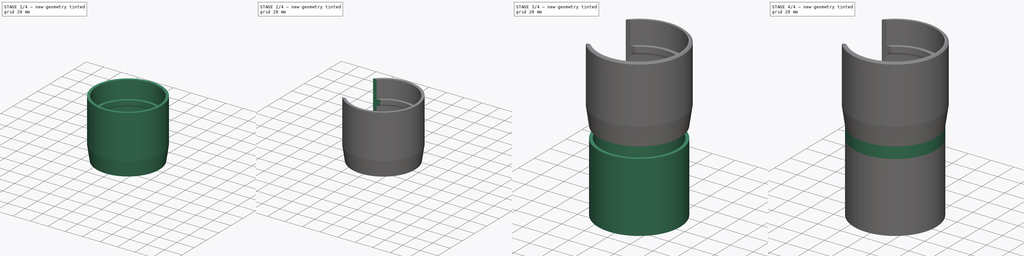
[diagram: build sequence overview — one tinted view per stage of 4, left to right]
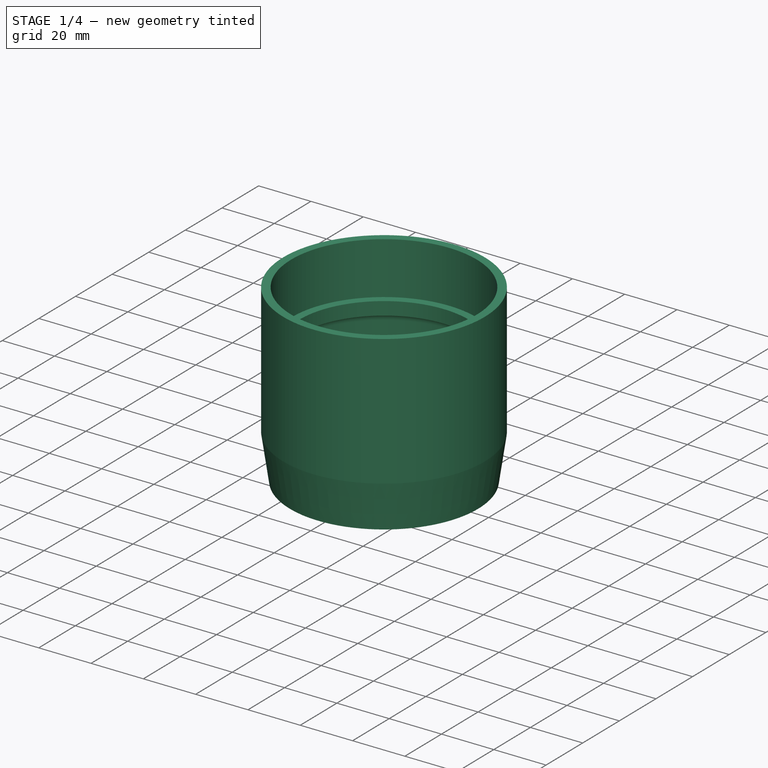
[diagram: stage 1 of 4 — iso view after this stage's code; geometry added in this stage tinted green]
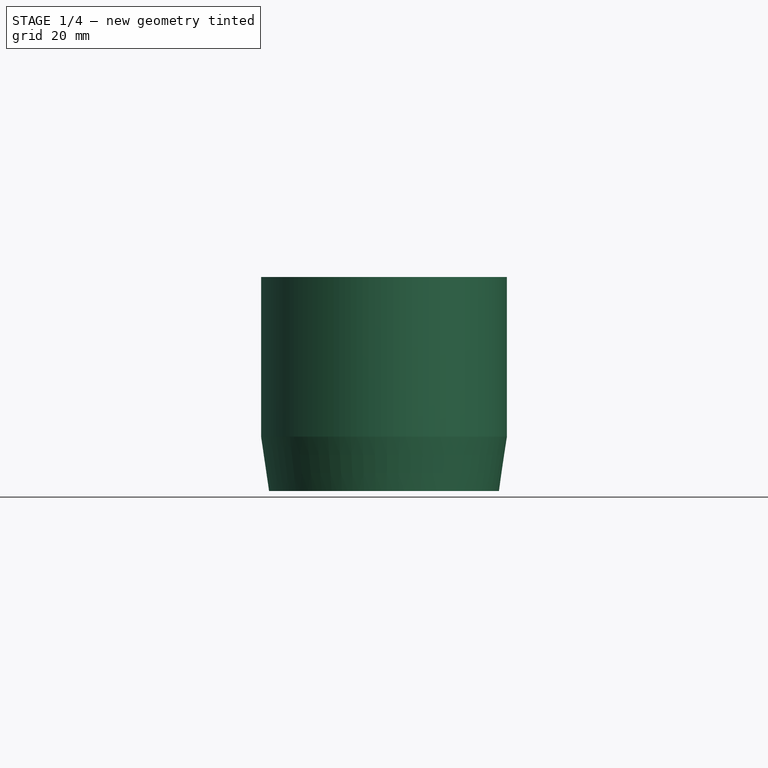
[diagram: stage 1 of 4 — front view after this stage's code; geometry added in this stage tinted green]
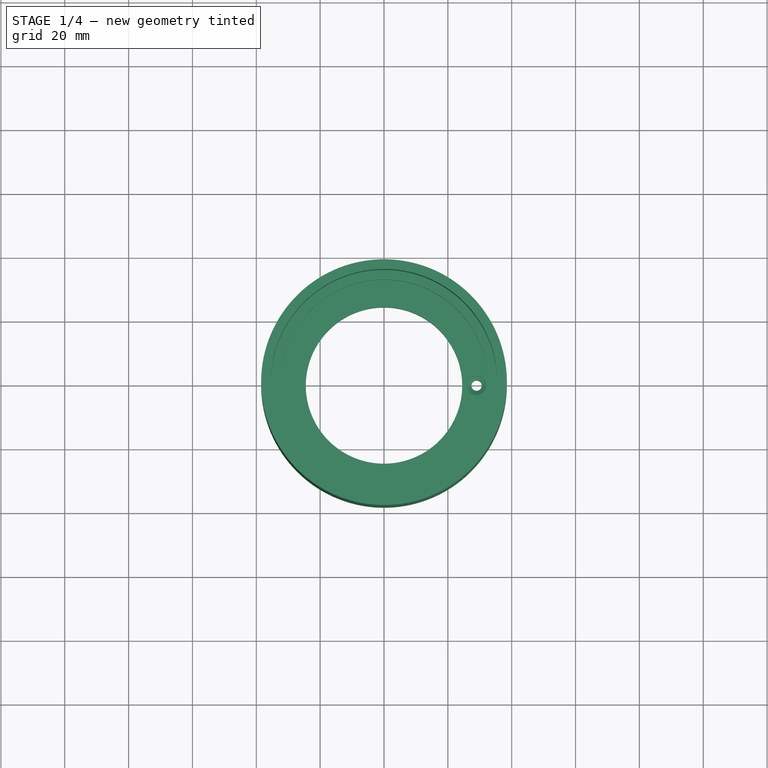
[diagram: stage 1 of 4 — top view after this stage's code; geometry added in this stage tinted green]
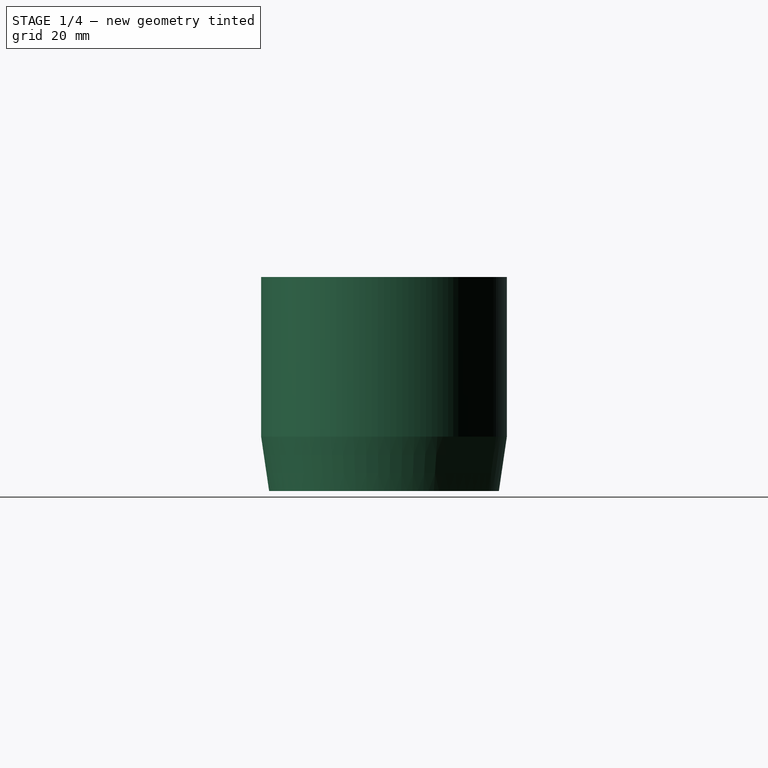
[diagram: stage 1 of 4 — right view after this stage's code; geometry added in this stage tinted green]
FCSTD DOCUMENT  (FreeCAD 1.0R39109 (Git))
Label: HeizungOberteil Kartusche
License: All rights reserved
LicenseURL: http://en.wikipedia.org/wiki/All_rights_reserved
objects: Sketcher::SketchObject×7, PartDesign::Hole×3, PartDesign::PolarPattern×3, PartDesign::Pad×2, PartDesign::Body×2, PartDesign::Revolution×1, PartDesign::Pocket×1, PartDesign::Chamfer×1
note: 46 computed .brp shape members not serialized (recipe doc carries the construction recipe); baked Part::Feature solids carry a one-line shape summary decoded from their .brp

FEATURE [PartDesign::Body] Body  label="KartuschenHülse"
  AllowCompound = false
  Group = -> [Sketch,Pad,Sketch001,Pad001,Sketch002,Hole,PolarPattern]
  Origin = -> Origin
  Tip = -> PolarPattern
FEATURE [Sketcher::SketchObject] Sketch003
  ArcFitTolerance = 1e-06
  AttachmentSupport = -> [XZ_Plane001]
  FullyConstrained = true
  MakeInternals = false
  MapMode = 5
  Placement = pos=(0,0,0) rot=(1,0,0;1.5708rad)
  sketch-geometry (11):
    g0: LineSegment StartX=-24.5 StartY=71 StartZ=0 EndX=-36 EndY=71 EndZ=0
    g1: LineSegment StartX=-36 StartY=71 StartZ=0 EndX=-38.5 EndY=88 EndZ=0
    g2: LineSegment StartX=-38.5 StartY=88 StartZ=0 EndX=-38.5 EndY=138 EndZ=0
    g3: LineSegment StartX=-38.5 StartY=138 StartZ=0 EndX=-35.5 EndY=138 EndZ=0
    g4: LineSegment StartX=-35.5 StartY=138 StartZ=0 EndX=-35.5 EndY=118 EndZ=0
    g5: LineSegment StartX=-35.5 StartY=118 StartZ=0 EndX=-32.5 EndY=118 EndZ=0
    g6: LineSegment StartX=-32.5 StartY=118 StartZ=0 EndX=-32.5 EndY=113 EndZ=0
    g7: ArcOfCircle CenterX=-32.5 CenterY=110 CenterZ=0 NormalX=0 NormalY=0 NormalZ=1 AngleXU=0 Radius=3 StartAngle=1.5708 EndAngle=3.14159
    g8: LineSegment StartX=-35.5 StartY=110 StartZ=0 EndX=-35.5 EndY=78 EndZ=0
    g9: LineSegment StartX=-35.5 StartY=78 StartZ=0 EndX=-24.5 EndY=78 EndZ=0
    g10: LineSegment StartX=-24.5 StartY=78 StartZ=0 EndX=-24.5 EndY=71 EndZ=0
  constraints (33):
    c: Horizontal(g0)
    c: Coincident(g0,g1)
    c: Coincident(g1,g2)
    c: Vertical(g2)
    c: Coincident(g2,g3)
    c: Coincident(g3,g4)
    c: Vertical(g4)
    c: Coincident(g4,g5)
    c: Coincident(g5,g6)
    c: Perpendicular(g6,g7) = 4.71239
    c: Coincident(g7,g8)
    c: Vertical(g8)
    c: Horizontal(g9)
    c: Coincident(g9,g10)
    c: Coincident(g10,g0)
    c: DistanceY(g10,g10) = 7
    c: Vertical(g6)
    c: Horizontal(g3)
    c: Distance(g2,g8) = 3
    c: DistanceX(g3,g3) = 3
    c: Distance(g4,g-2) = 35.5
    c: Horizontal(g5)
    c: Distance(g5,g5) = 3
    c: DistanceY(g6,g6) = 5
    c: DistanceY(g4,g4) = 20
    c: DistanceY(g0,g5) = 47
    c: DistanceY(g2,g2) = 50
    c: Coincident(g8,g9)
    c: Radius(g7) = 3
    c: DistanceY(g-1,g0) = 71
    c: Vertical(g10)
    c: Distance(g0,g-2) = 36
    c: Distance(g9,g-2) = 24.5
FEATURE [PartDesign::Revolution] Revolution
  Angle = 360
  Angle2 = 60
  Axis = (0,2e-16,1)
  Base = (0,0,0)
  Placement = pos=(0,0,0) rot=(1,0,0;1.5708rad)
  Profile = -> Sketch003
  ReferenceAxis = -> Sketch003 [V_Axis]
  Suppressed = false
  Type = 0
FEATURE [Sketcher::SketchObject] Sketch004
  ArcFitTolerance = 1e-06
  AttachmentSupport = -> [Revolution]
  FullyConstrained = true
  MakeInternals = false
  MapMode = 5
  Placement = pos=(0,1.73e-14,78) rot=(0,0,1;3.14159rad)
  sketch-geometry (1):
    g0: Circle CenterX=-29 CenterY=0 CenterZ=0 NormalX=0 NormalY=0 NormalZ=1 AngleXU=0 Radius=1.5
  constraints (3):
    c: PointOnObject(g0,g-1)
    c: Diameter(g0) = 3
    c: Distance(g0,g-1) = 29
FEATURE [PartDesign::Hole] Hole001
  BaseFeature = -> Revolution
  CustomThreadClearance = 0
  Depth = 7
  DepthType = 0
  Diameter = 3.2
  DrillForDepth = false
  DrillPoint = 1
  DrillPointAngle = 118
  HoleCutCountersinkAngle = 90
  HoleCutCustomValues = false
  HoleCutDepth = 0
  HoleCutDiameter = 6.1
  HoleCutType = 0
  ModelThread = false
  Placement = pos=(0,0,0) rot=(1,0,0;1.5708rad)
  Profile = -> Sketch004
  Suppressed = false
  Tapered = false
  TaperedAngle = 90
  ThreadClass = 0
  ThreadDepth = 7
  ThreadDepthType = 0
  ThreadDirection = 0
  ThreadFit = 2
  ThreadSize = 0
  ThreadType = 0
  Threaded = false
  UseCustomThreadClearance = false
FEATURE [Sketcher::SketchObject] Sketch005
  ArcFitTolerance = 1e-06
  AttachmentSupport = -> [Hole001]
  ExternalGeometry = -> [Hole001]
  FullyConstrained = true
  MakeInternals = false
  MapMode = 5
  Placement = pos=(0,1.73e-14,78) rot=(0,0,1;3.14159rad)
  sketch-geometry (1):
    g0: Circle CenterX=-29 CenterY=0 CenterZ=0 NormalX=0 NormalY=0 NormalZ=1 AngleXU=0 Radius=3
  constraints (2):
    c: Coincident(g0,g-3)
    c: Diameter(g0) = 6
FEATURE [PartDesign::Hole] Hole002
  BaseFeature = -> Hole001
  CustomThreadClearance = 0
  Depth = 3
  DepthType = 0
  Diameter = 6
  DrillForDepth = false
  DrillPoint = 1
  DrillPointAngle = 118
  HoleCutCountersinkAngle = 90
  HoleCutCustomValues = false
  HoleCutDepth = 0
  HoleCutDiameter = 6.1
  HoleCutType = 0
  ModelThread = false
  Placement = pos=(0,0,0) rot=(1,0,0;1.5708rad)
  Profile = -> Sketch005
  Suppressed = false
  Tapered = false
  TaperedAngle = 90
  ThreadClass = 0
  ThreadDepth = 3
  ThreadDepthType = 0
  ThreadDirection = 0
  ThreadFit = 0
  ThreadSize = 0
  ThreadType = 0
  Threaded = false
  UseCustomThreadClearance = false
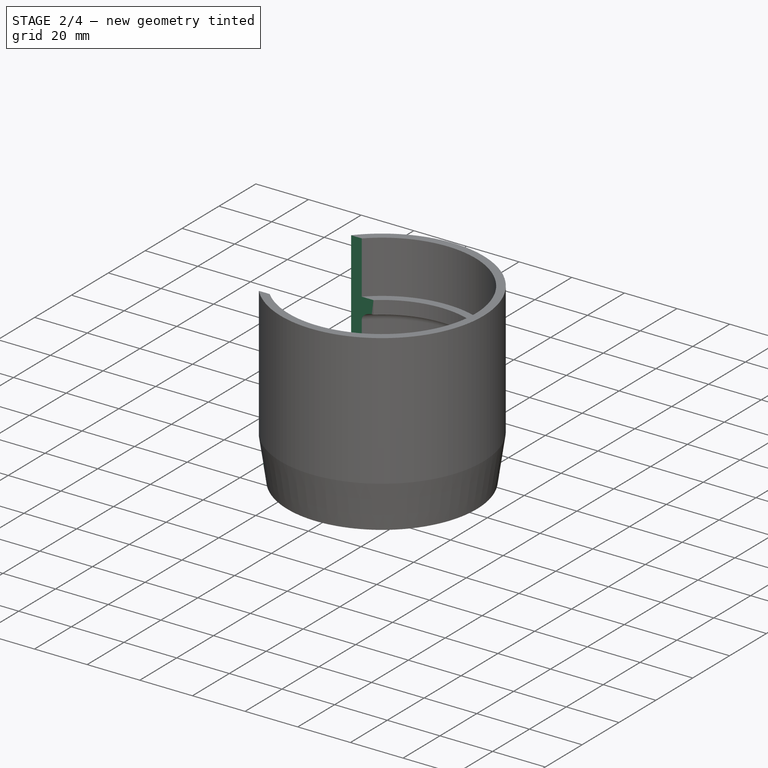
[diagram: stage 2 of 4 — iso view after this stage's code; geometry added in this stage tinted green]
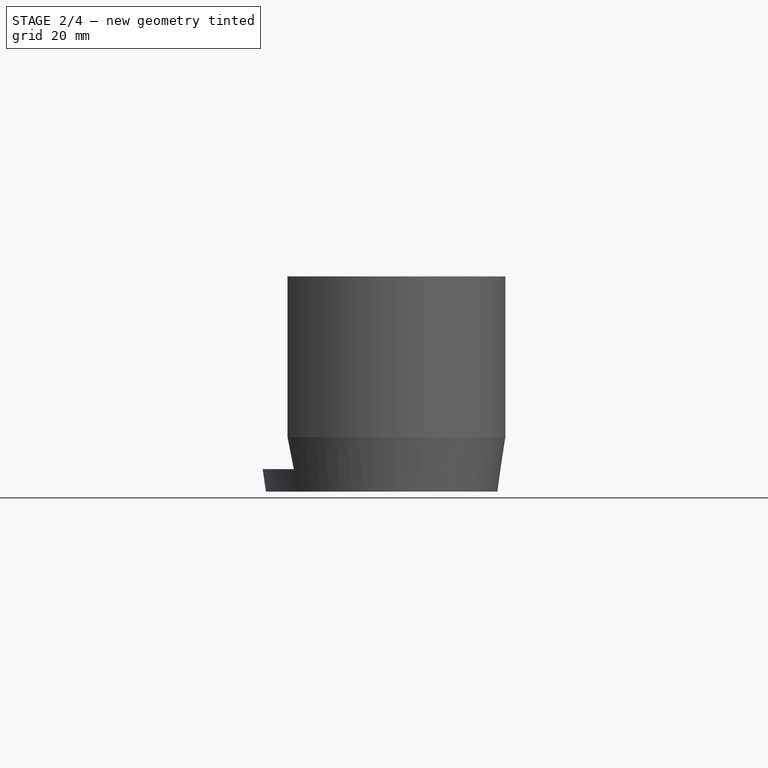
[diagram: stage 2 of 4 — front view after this stage's code; geometry added in this stage tinted green]
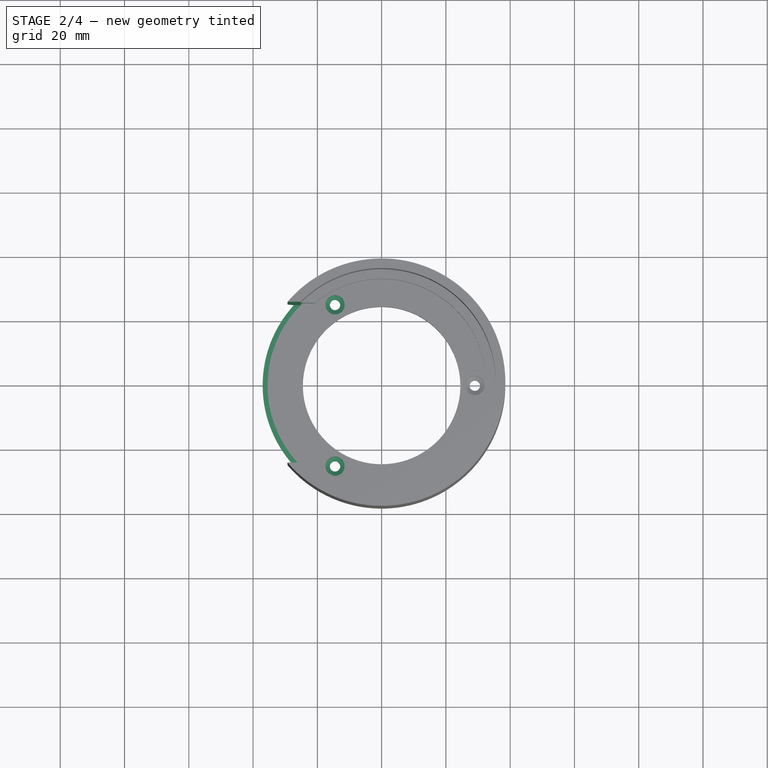
[diagram: stage 2 of 4 — top view after this stage's code; geometry added in this stage tinted green]
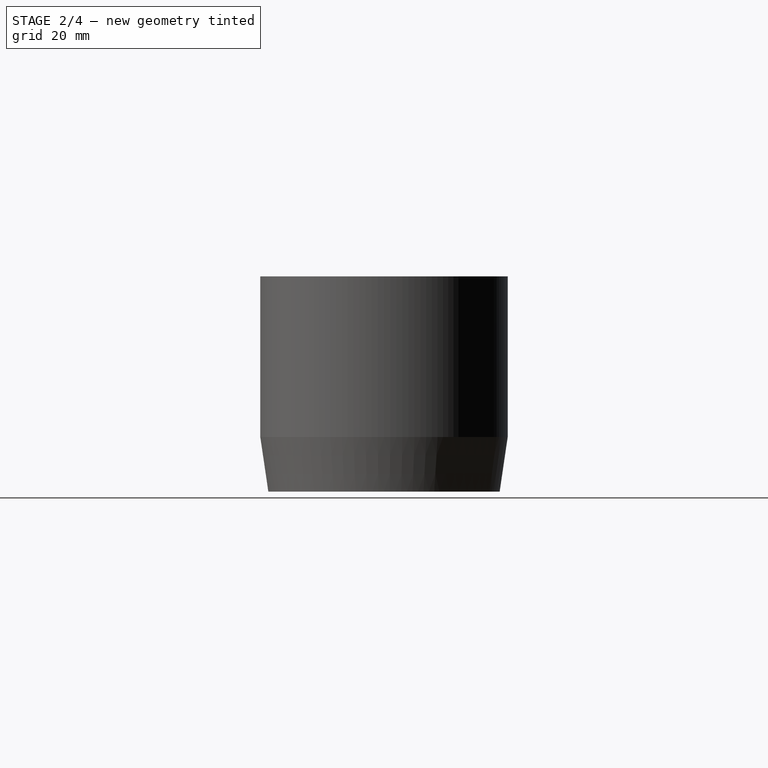
[diagram: stage 2 of 4 — right view after this stage's code; geometry added in this stage tinted green]
FEATURE [PartDesign::PolarPattern] PolarPattern001
  Angle = 360
  Axis = -> Sketch005 [N_Axis]
  BaseFeature = -> Hole002
  Mode = 0
  Occurrences = 3
  Offset = 120
  Originals = -> [Hole002]
  Placement = pos=(0,0,0) rot=(1,0,0;1.5708rad)
  Suppressed = false
  TransformMode = 0
FEATURE [PartDesign::PolarPattern] PolarPattern002
  Angle = 360
  Axis = -> Sketch004 [N_Axis]
  BaseFeature = -> PolarPattern001
  Mode = 0
  Occurrences = 3
  Offset = 120
  Originals = -> [Hole001]
  Placement = pos=(0,0,0) rot=(1,0,0;1.5708rad)
  Suppressed = false
  TransformMode = 0
FEATURE [Sketcher::SketchObject] Sketch006
  ArcFitTolerance = 1e-06
  AttachmentSupport = -> [PolarPattern002]
  ExternalGeometry = -> [PolarPattern002]
  FullyConstrained = true
  MakeInternals = false
  MapMode = 5
  Placement = pos=(0,3.06e-14,138) rot=(0,0,1;3.14159rad)
  sketch-geometry (5):
    g0: LineSegment StartX=12 StartY=25 StartZ=0 EndX=12 EndY=-25 EndZ=0
    g1: LineSegment StartX=12 StartY=-25 StartZ=0 EndX=52 EndY=-25 EndZ=0
    g2: LineSegment StartX=52 StartY=-25 StartZ=0 EndX=52 EndY=25 EndZ=0
    g3: LineSegment StartX=52 StartY=25 StartZ=0 EndX=12 EndY=25 EndZ=0
    g4: GeomPoint [constr] X=32 Y=0 Z=0
  constraints (13):
    c: Coincident(g0,g1)
    c: Coincident(g1,g2)
    c: Coincident(g2,g3)
    c: Coincident(g3,g0)
    c: Vertical(g0)
    c: Vertical(g2)
    c: Horizontal(g1)
    c: Horizontal(g3)
    c: Symmetric(g2,g0,g4)
    c: PointOnObject(g4,g-1)
    c: DistanceY(g2,g2) = 50
    c: DistanceX(g1,g1) = 40
    c: DistanceX(g-1,g4) = 32
FEATURE [PartDesign::Pocket] Pocket
  BaseFeature = -> PolarPattern002
  Direction = (0,0,-1)
  Length = 5
  Length2 = 5
  Placement = pos=(0,0,0) rot=(1,0,0;1.5708rad)
  Profile = -> Sketch006
  ReferenceAxis = -> Sketch006 [N_Axis]
  Suppressed = false
  Type = 2
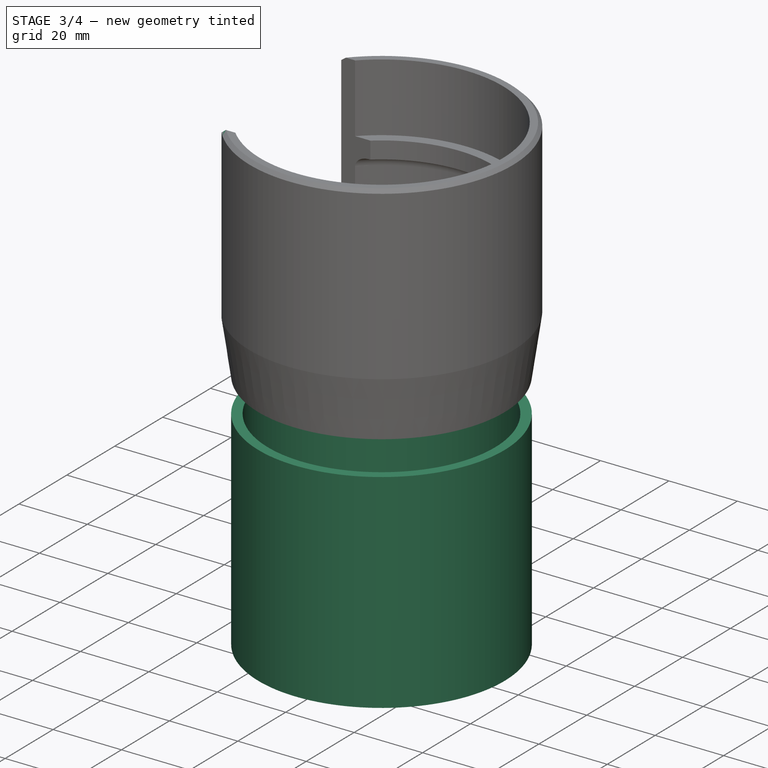
[diagram: stage 3 of 4 — iso view after this stage's code; geometry added in this stage tinted green]
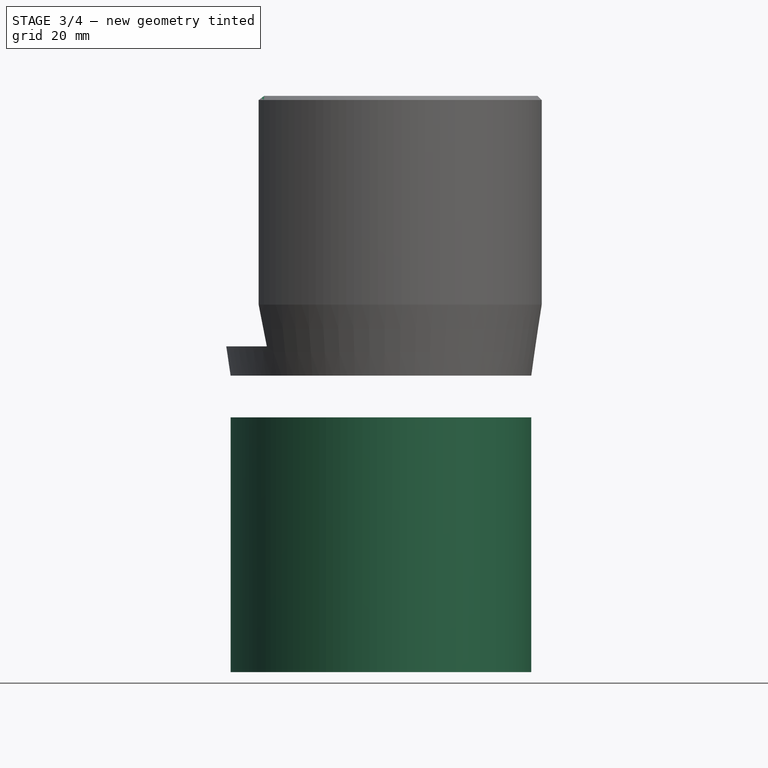
[diagram: stage 3 of 4 — front view after this stage's code; geometry added in this stage tinted green]
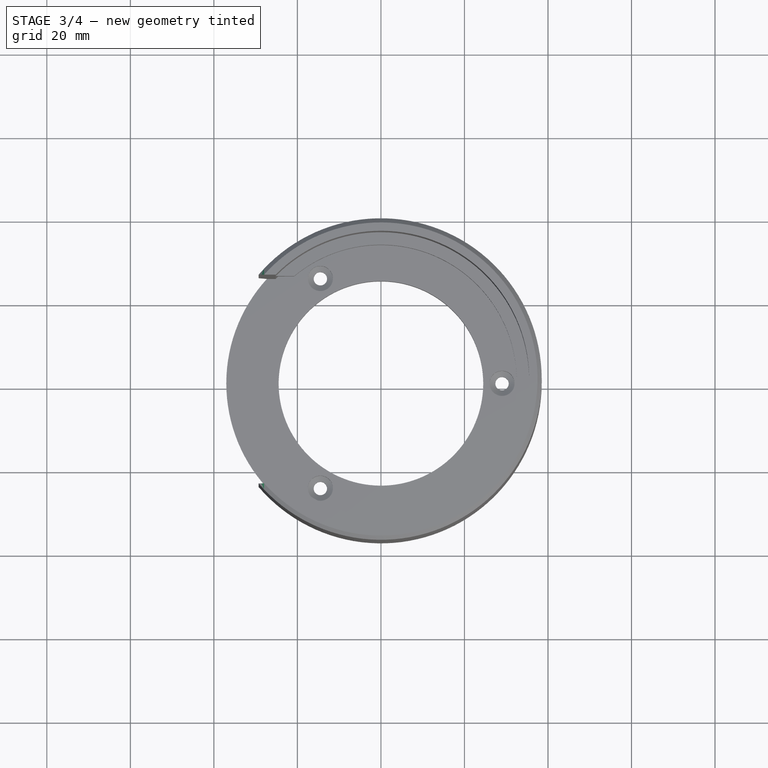
[diagram: stage 3 of 4 — top view after this stage's code; geometry added in this stage tinted green]
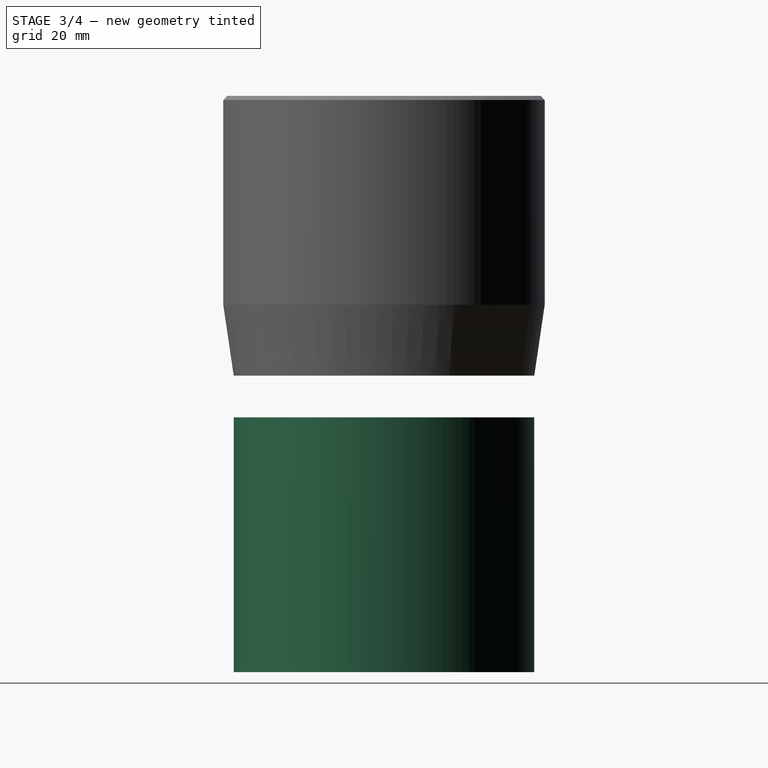
[diagram: stage 3 of 4 — right view after this stage's code; geometry added in this stage tinted green]
FEATURE [Sketcher::SketchObject] Sketch
  ArcFitTolerance = 1e-06
  AttachmentSupport = -> [XY_Plane]
  FullyConstrained = true
  MakeInternals = false
  MapMode = 5
  sketch-geometry (2):
    g0: Circle CenterX=0 CenterY=0 CenterZ=0 NormalX=0 NormalY=0 NormalZ=1 AngleXU=0 Radius=33.25
    g1: Circle CenterX=0 CenterY=0 CenterZ=0 NormalX=0 NormalY=0 NormalZ=1 AngleXU=0 Radius=36
  constraints (4):
    c: Coincident(g0,g-1)
    c: Coincident(g1,g0)
    c: Diameter(g0) = 66.5
    c: Diameter(g1) = 72
FEATURE [PartDesign::Pad] Pad
  Direction = (0,0,1)
  Length = 61
  Length2 = 10
  Profile = -> Sketch
  ReferenceAxis = -> Sketch [N_Axis]
  Suppressed = false
  Type = 0
FEATURE [PartDesign::Chamfer] Chamfer
  Angle = 45
  Base = -> Pocket [Edge33]
  BaseFeature = -> Pocket
  ChamferType = 0
  FlipDirection = false
  Placement = pos=(0,0,0) rot=(1,0,0;1.5708rad)
  Size = 1
  Size2 = 1
  SupportTransform = false
  Suppressed = false
  UseAllEdges = false
FEATURE [PartDesign::Body] Body001  label="GlashalterV2"
  AllowCompound = false
  Group = -> [Sketch003,Revolution,Sketch004,Hole001,Sketch005,Hole002,PolarPattern001,PolarPattern002,Sketch006,Pocket,Chamfer]
  Origin = -> Origin001
  Tip = -> Chamfer
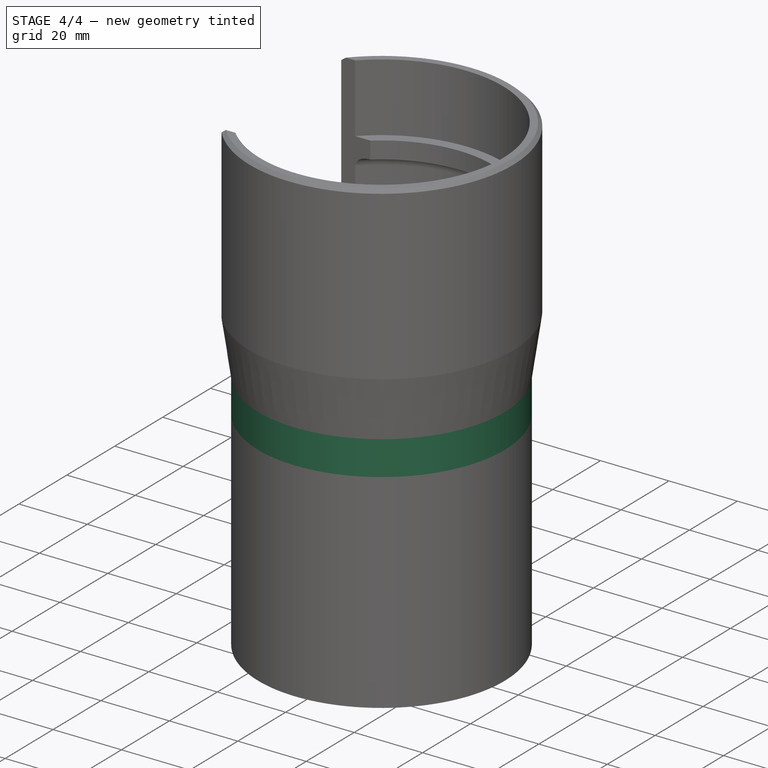
[diagram: stage 4 of 4 — iso view after this stage's code; geometry added in this stage tinted green]
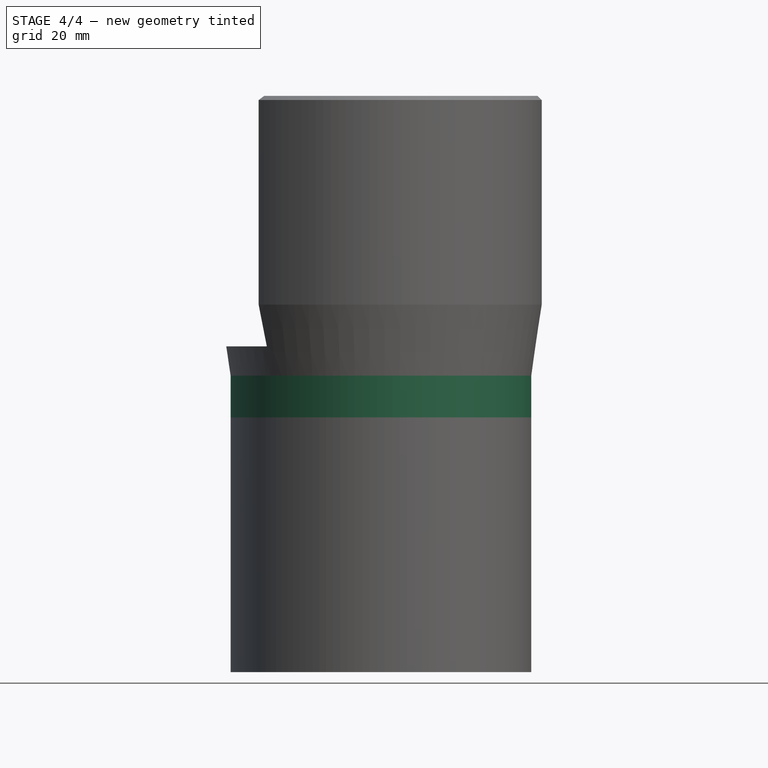
[diagram: stage 4 of 4 — front view after this stage's code; geometry added in this stage tinted green]
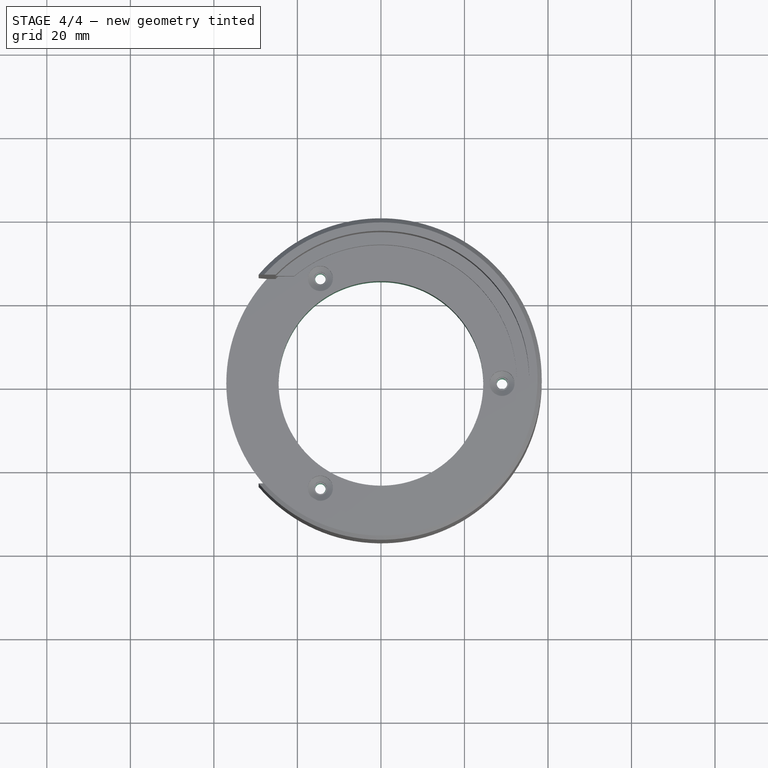
[diagram: stage 4 of 4 — top view after this stage's code; geometry added in this stage tinted green]
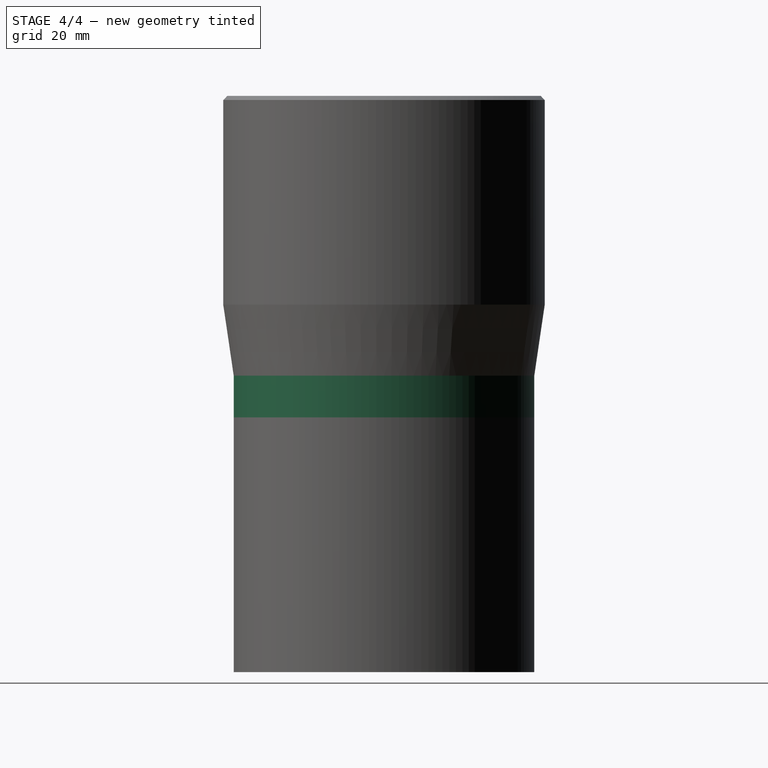
[diagram: stage 4 of 4 — right view after this stage's code; geometry added in this stage tinted green]
FEATURE [Sketcher::SketchObject] Sketch001
  ArcFitTolerance = 1e-06
  AttachmentSupport = -> [Pad]
  ExternalGeometry = -> [Pad]
  FullyConstrained = true
  MakeInternals = false
  MapMode = 5
  Placement = pos=(0,0,61) rot=(0,0,1;0rad)
  sketch-geometry (2):
    g0: Circle CenterX=0 CenterY=0 CenterZ=0 NormalX=0 NormalY=0 NormalZ=1 AngleXU=0 Radius=36
    g1: Circle CenterX=0 CenterY=0 CenterZ=0 NormalX=0 NormalY=0 NormalZ=1 AngleXU=0 Radius=24.5
  constraints (4):
    c: Coincident(g0,g-1)
    c: Tangent(g0,g-3)
    c: Coincident(g1,g0)
    c: Diameter(g1) = 49
FEATURE [PartDesign::Pad] Pad001
  BaseFeature = -> Pad
  Direction = (0,0,1)
  Length = 10
  Length2 = 10
  Profile = -> Sketch001
  ReferenceAxis = -> Sketch001 [N_Axis]
  Suppressed = false
  Type = 0
FEATURE [Sketcher::SketchObject] Sketch002
  ArcFitTolerance = 1e-06
  AttachmentSupport = -> [Pad001]
  ExternalGeometry = -> [Pad001]
  FullyConstrained = true
  MakeInternals = false
  MapMode = 5
  Placement = pos=(0,0,71) rot=(0,0,1;0rad)
  sketch-geometry (1):
    g0: Circle CenterX=29 CenterY=0 CenterZ=0 NormalX=0 NormalY=0 NormalZ=1 AngleXU=0 Radius=1.3
  constraints (3):
    c: PointOnObject(g0,g-1)
    c: Diameter(g0) = 2.6
    c: DistanceX(g-1,g0) = 29
FEATURE [PartDesign::Hole] Hole
  BaseFeature = -> Pad001
  CustomThreadClearance = 0
  Depth = 10
  DepthType = 0
  Diameter = 2.52
  DrillForDepth = false
  DrillPoint = 1
  DrillPointAngle = 118
  HoleCutCountersinkAngle = 90
  HoleCutCustomValues = false
  HoleCutDepth = 0
  HoleCutDiameter = 6.1
  HoleCutType = 0
  ModelThread = true
  Profile = -> Sketch002
  Suppressed = false
  Tapered = true
  TaperedAngle = 90
  ThreadClass = 0
  ThreadDepth = 10
  ThreadDepthType = 0
  ThreadDirection = 0
  ThreadFit = 0
  ThreadSize = 9
  ThreadType = 1
  Threaded = true
  UseCustomThreadClearance = false
FEATURE [PartDesign::PolarPattern] PolarPattern
  Angle = 360
  Axis = -> Sketch002 [N_Axis]
  BaseFeature = -> Hole
  Mode = 0
  Occurrences = 3
  Offset = 120
  Originals = -> [Hole]
  Suppressed = false
  TransformMode = 0
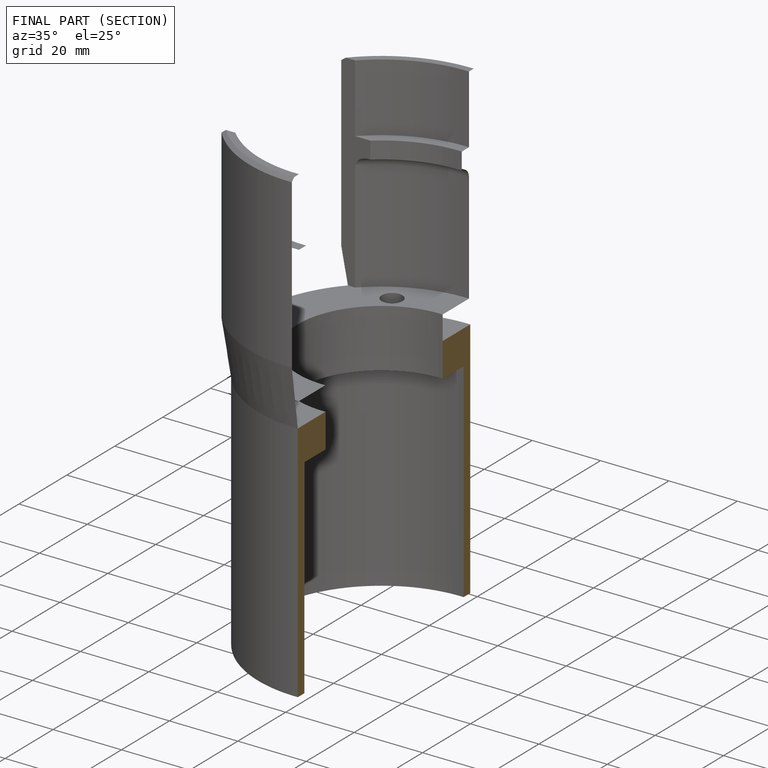
[diagram: finished part — half-section view (interior)]
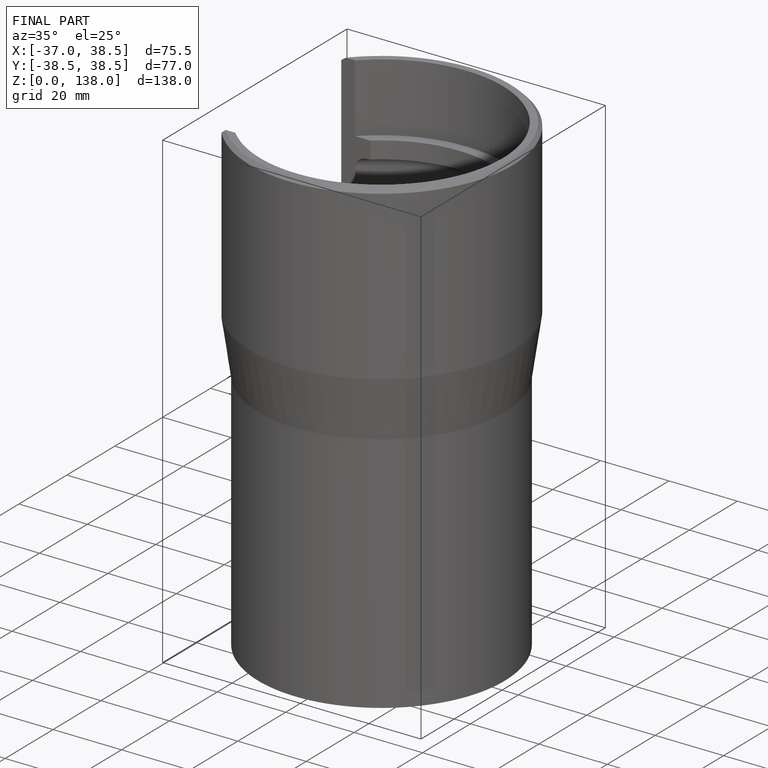
[diagram: finished part — iso view with bounding-box wireframe]
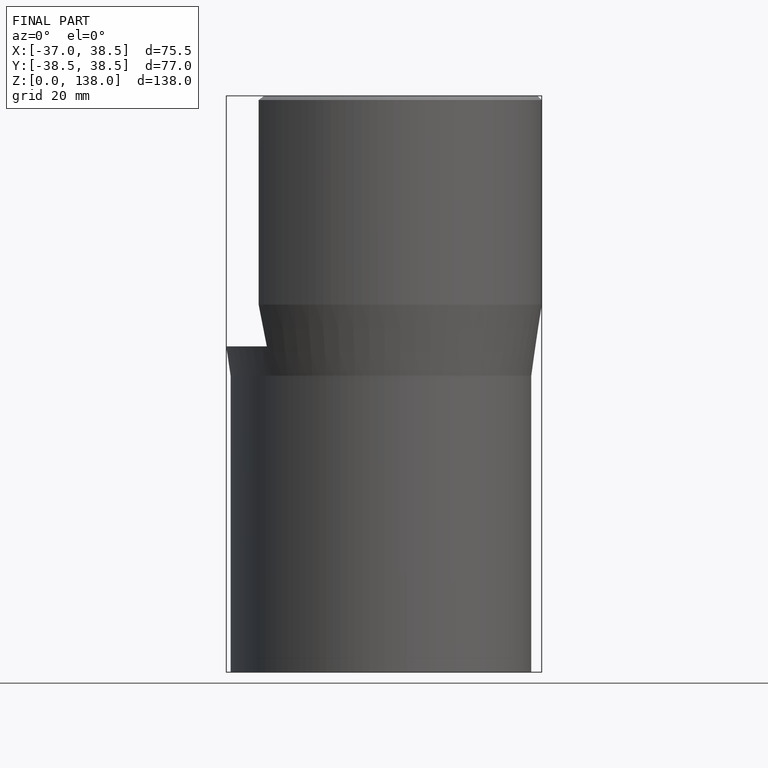
[diagram: finished part — front view with bounding-box wireframe]
